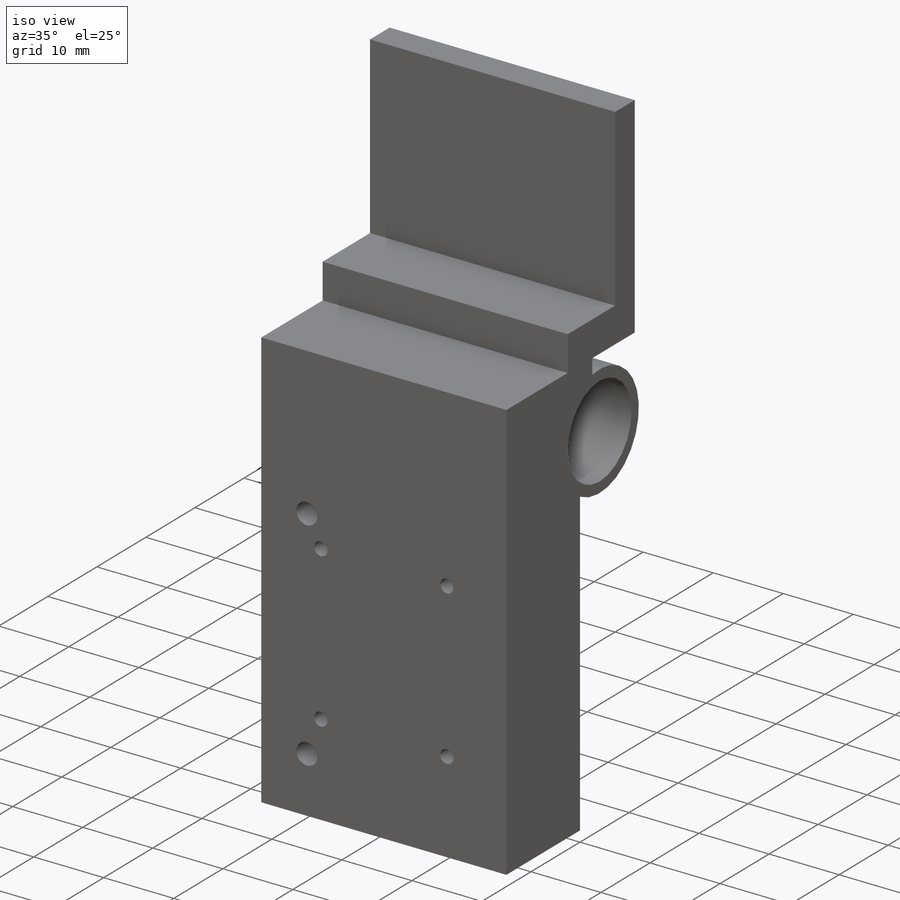
[diagram: iso view]
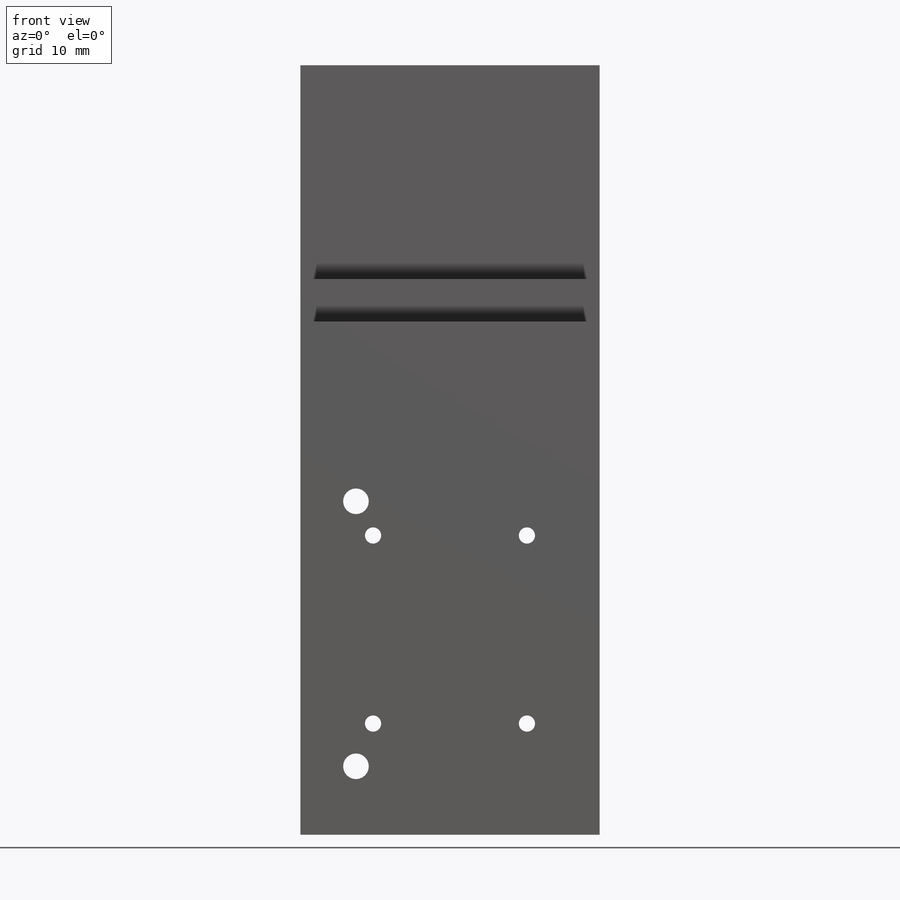
[diagram: front view]
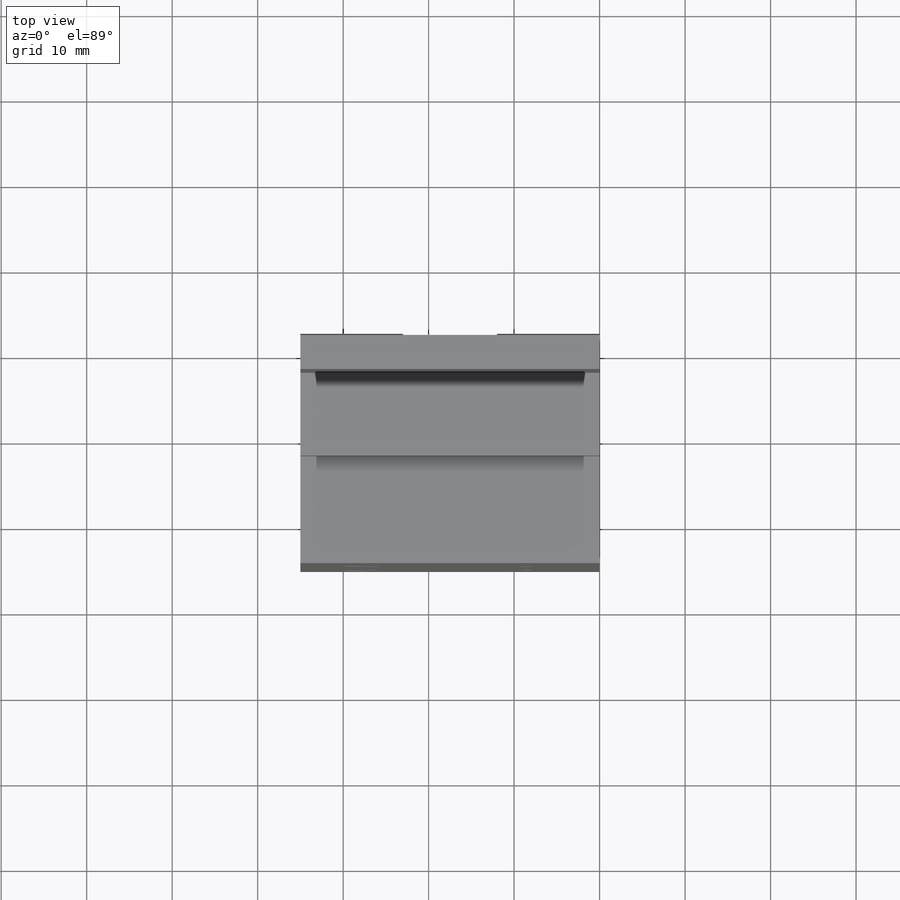
[diagram: top view]
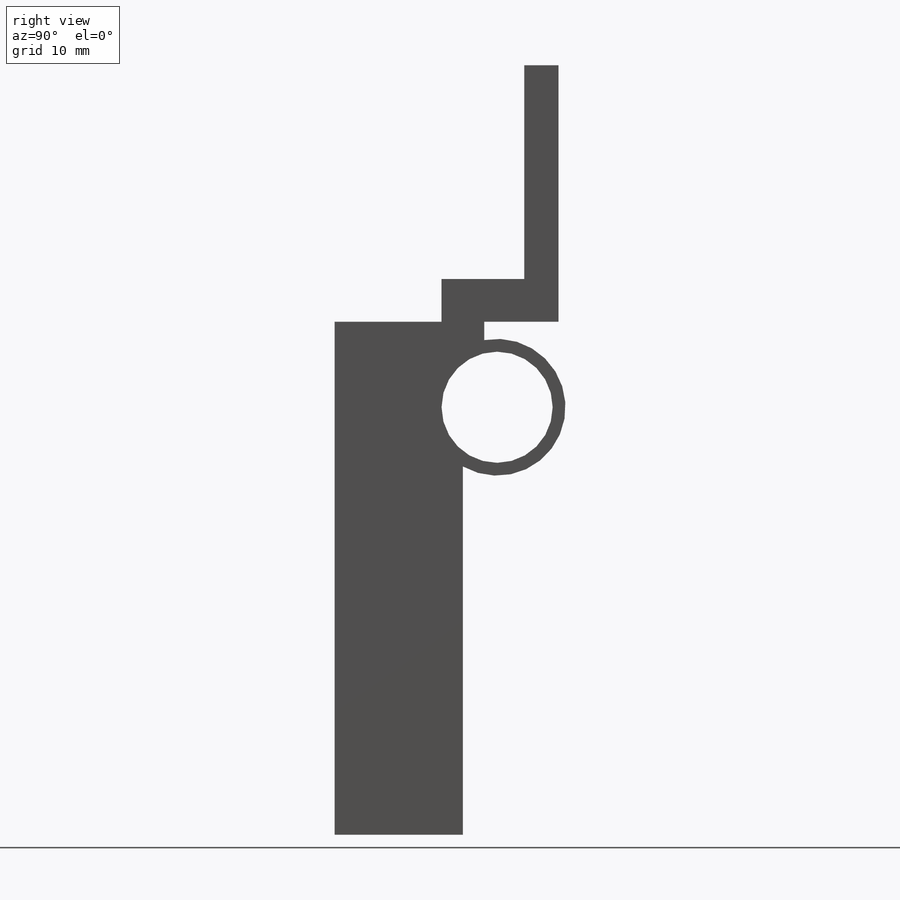
[diagram: right view]
SOLIDWORKS PART (.sldprt)
format: sldprt  version: not decoded by parser v0  size: 230,912 bytes
history: native  units: mm
features: sketch x6, extrude x4, cut_extrude x2, mirror x2, material x1, plane x1 (+16 scaffold rows collapsed)
feature tree (32):
  scaffold x16  (default folders/planes/origin — collapsed)
  material  "Material <not specified>"
  sketch  "Sketch1"  dims[D1=60.0mm D2=35.0mm]
  extrude  "Boss-Extrude1"  Depth=15mm
  sketch  "Sketch2"  dims[c1.D1=3.0mm c1.D4=1.9mm c1.D8=5.0mm c1.D9=4.0mm c1.D2=6.5mm c1.D3=8.0mm c1.D5=6.0mm c1.D6=2.0mm c1.D7=22.0mm c1.D10=5.0mm c2.D6=2.0mm c2.D5=13.0mm c2.D8=39.0mm]
  cut_extrude  "Cut-Extrude1"  [1 undecoded]
  plane  "Plane1"  Offset=17.5mm
  mirror  "Mirror1"
  sketch  "Sketch3"  dims[D1=16.0mm D2=50.0mm D3=4.0mm]
  extrude  "Boss-Extrude2"  Depth=12mm
  sketch  "Sketch4"  dims[D1=13.0mm D2=50.0mm]
  cut_extrude  "Cut-Extrude2"  [1 undecoded]
  mirror  "Mirror2"
  sketch  "Sketch5"  dims[D1=5.0mm]
  extrude  "Boss-Extrude4"  Depth=5mm
  sketch  "Sketch12"  dims[c1.D1=12.6mm c1.D5=12.6mm c2.D1=11.0mm c2.D2=25.0mm c2.D3=4.0mm c2.D4=15.0mm c3.D1=3.175mm c3.D5=15.0mm c3.D4=5.0mm c4.D5=60.0mm c5.D5=90.0deg c6.D5=12.5mm]
  extrude  "Boss-Extrude7"  [1 undecoded]
decode coverage: 9 of 14 modeling features carry decoded parameters
note: 3 parameter values undecoded
summary: no parameter record found for 3 features
note: suppression state not decoded; provenance and decode notes live in map.json
